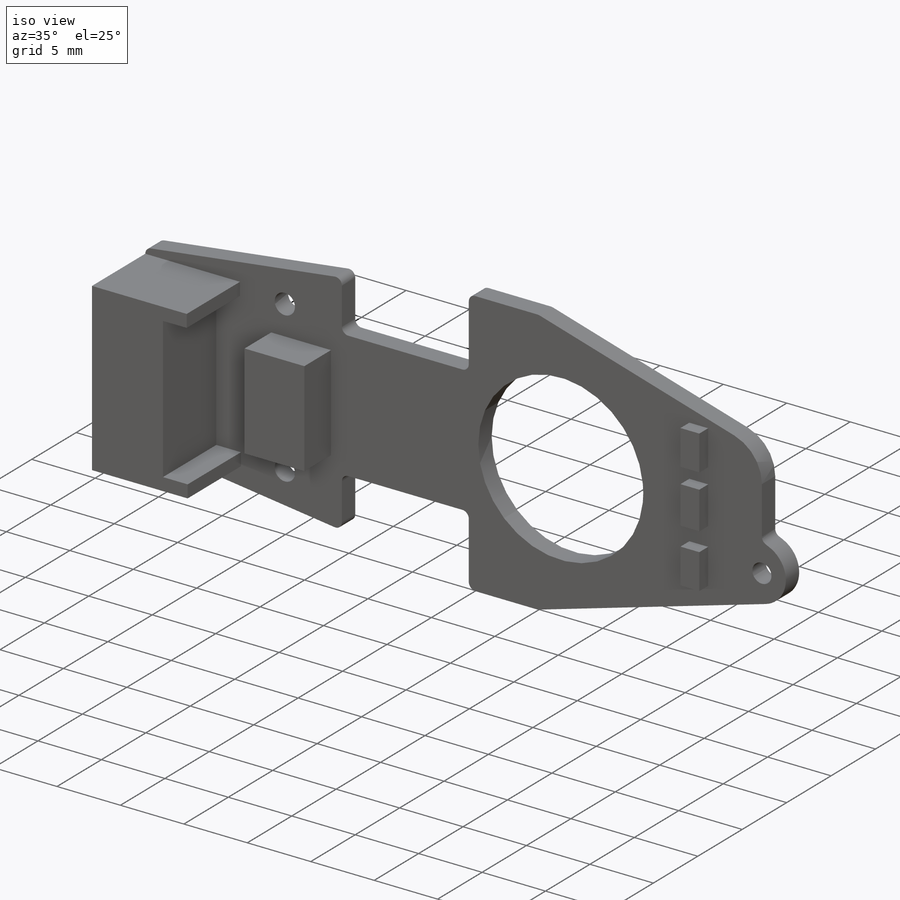
[diagram: iso view]
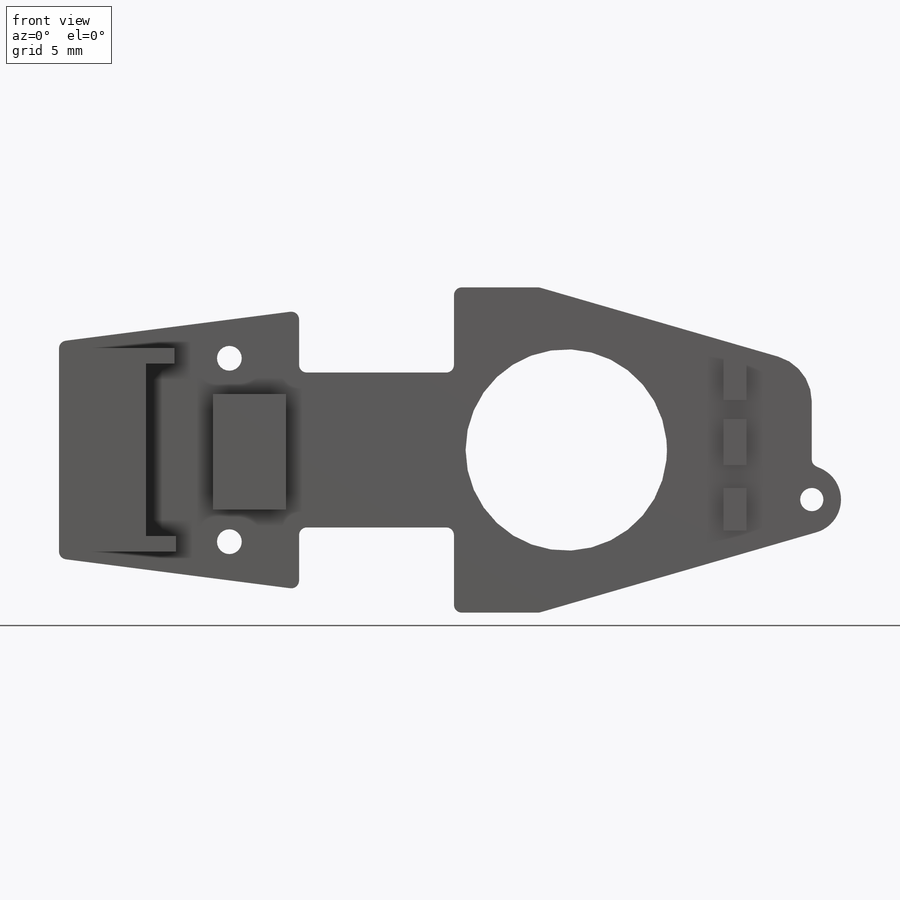
[diagram: front view]
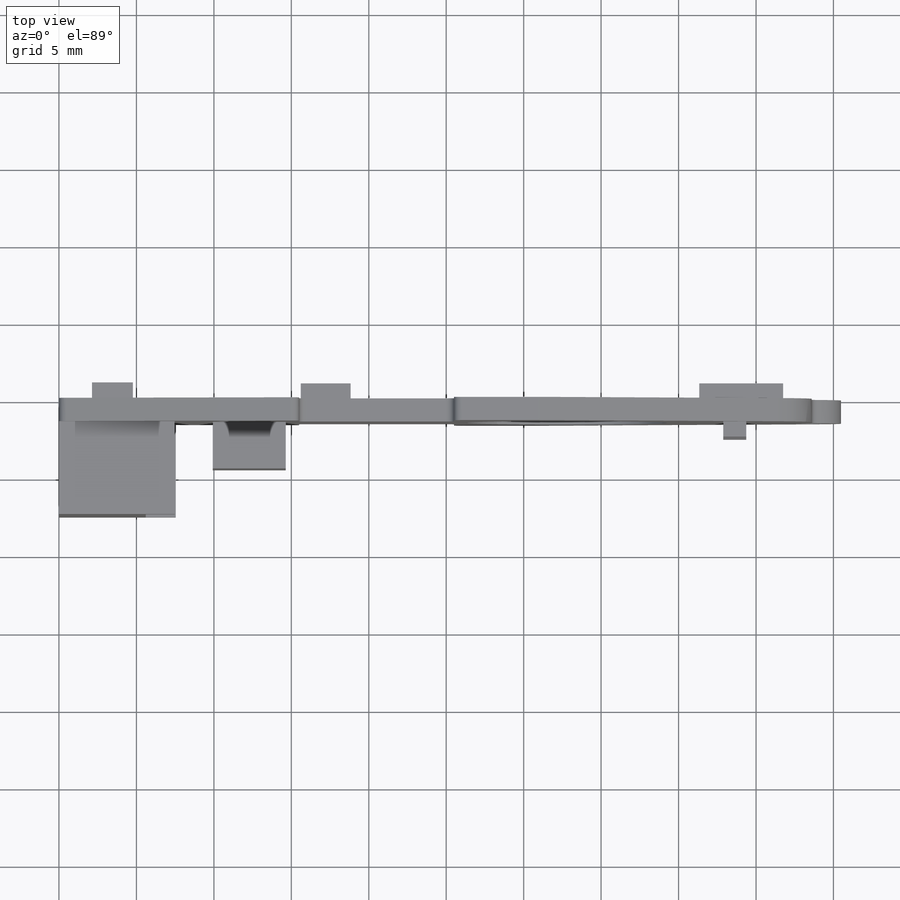
[diagram: top view]
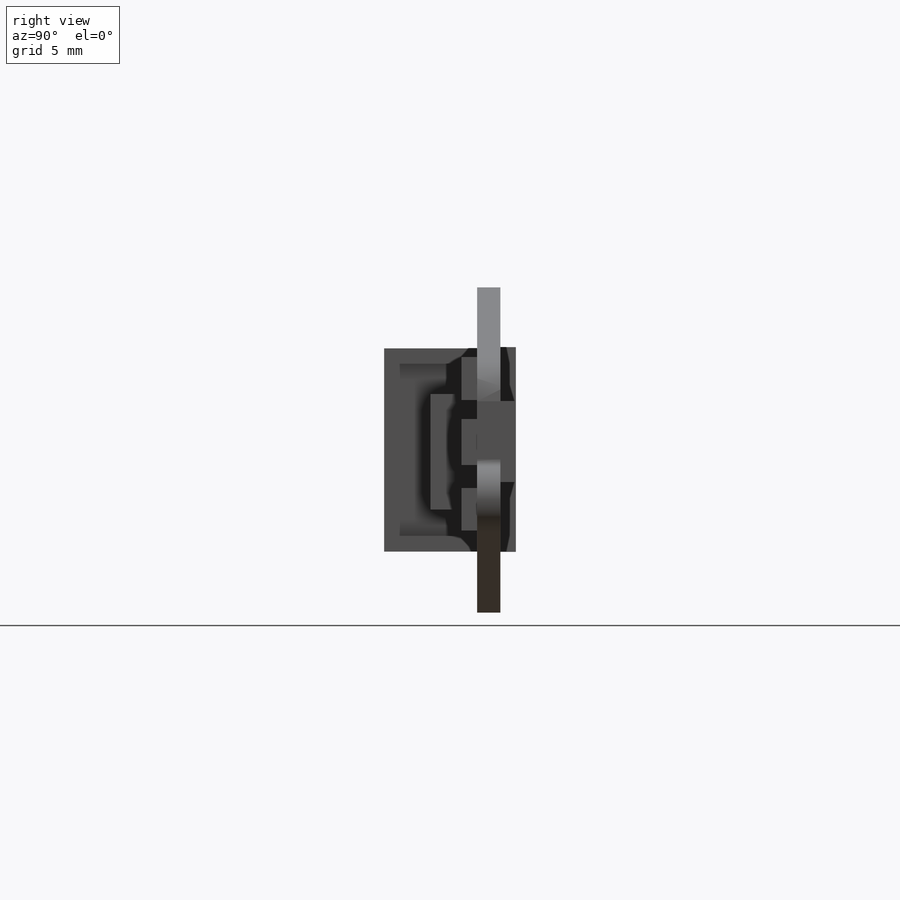
[diagram: right view]
SOLIDWORKS PART (.sldprt)
format: sldprt  version: not decoded by parser v0  size: 456,192 bytes
history: native  units: mm
features: sketch x8, extrude x6, plane x3, cut_extrude x2, material x1, mirror x1, fillet x1 (+8 scaffold rows collapsed)
feature tree (30):
  scaffold x8  (default folders/planes/origin — collapsed)
  material  "Matériau <non spécifié>"
  plane  "Plan de face"
  plane  "Plan de dessus"
  plane  "Plan de droite"
  sketch  "Esquisse1"  dims[c1.D10=0.5mm c1.D11=13.0mm c1.D13=1.6mm c1.D1=15.5mm c1.D2=10.0mm c1.D3=5.5mm c1.D4=23.1mm c1.D5=5.4mm c1.D6=10.5mm c1.D7=5.0mm c1.D8=9.0mm c1.D9=7.0mm c1.D12=7.25mm c1.D14=4.5mm c1.D15=~4.623244mm c2.D15=90.0deg c3.D15=5.92mm]
  extrude  "Extrusion1"  Depth=1.5mm
  mirror  "Symétrie1"
  sketch  "Esquisse2"  dims[D1=2.2mm D2=0.5mm]
  extrude  "Extrusion2"  Depth=1.5mm
  fillet  "Congé1"  Radius=3mm
  sketch  "Esquisse3"  dims[D1=1.5mm D2=2.2mm]
  cut_extrude  "Extrusion3"  [1 undecoded]
  sketch  "Esquisse4"  dims[D1=1.0mm D2=1.0mm]
  extrude  "Extrusion4"  Depth=6mm
  sketch  "Esquisse5"
  extrude  "Extrusion5"  Depth=3mm
  sketch  "Esquisse6"
  extrude  "Extrusion6"  Depth=1mm
  sketch  "Esquisse7"
  extrude  "Extrusion7"  Depth=1mm
  sketch  "Esquisse8"
  cut_extrude  "Extrusion8"  Depth=4mm
decode coverage: 12 of 18 modeling features carry decoded parameters
note: ~ marks probable driven/reference dimensions
note: 1 parameter value undecoded
note: suppression state not decoded; provenance and decode notes live in map.json
